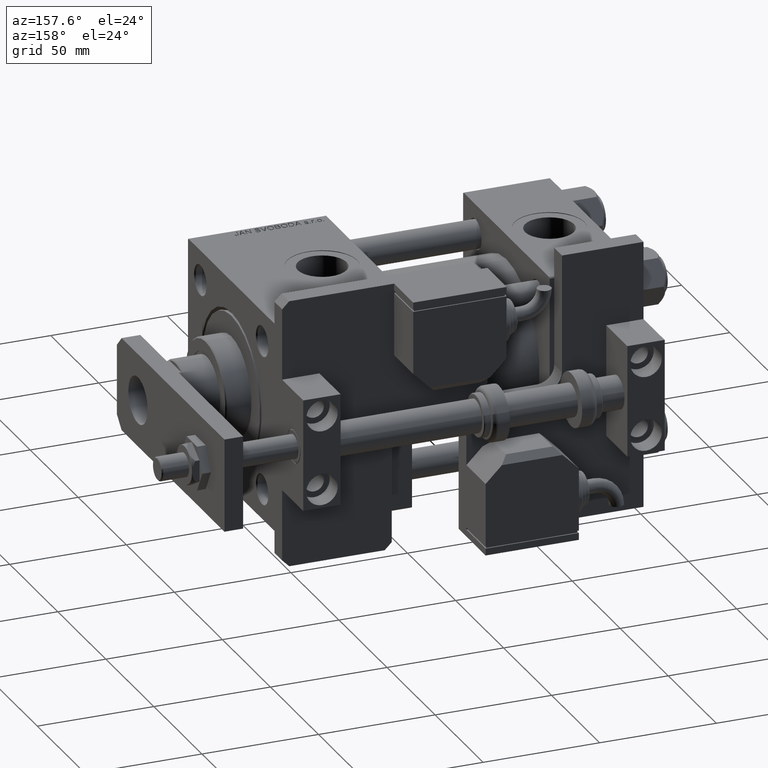
[diagram: clean part render]
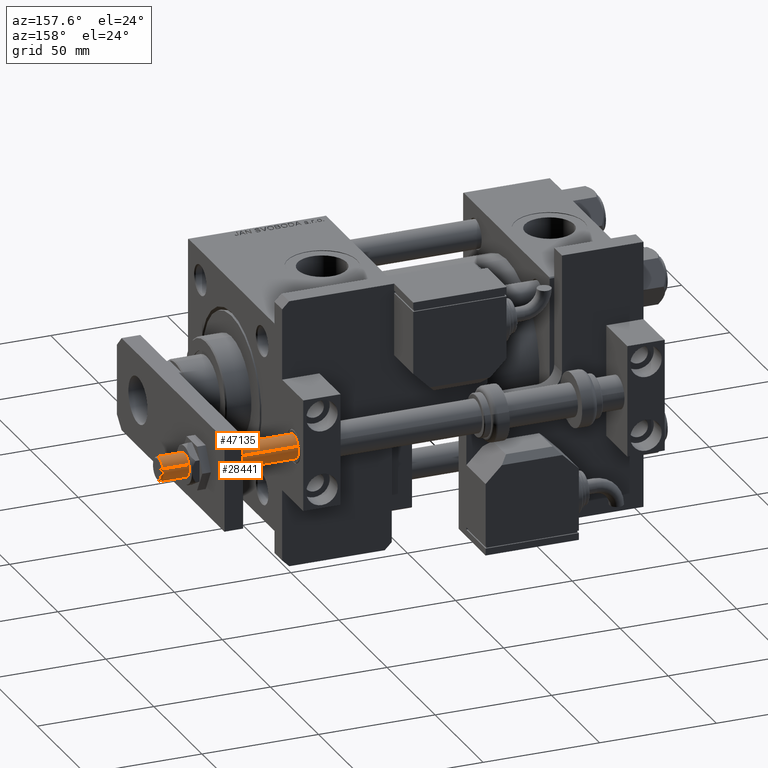
[diagram: same view with one multi-face feature highlighted, each face labeled with its STEP entity id]
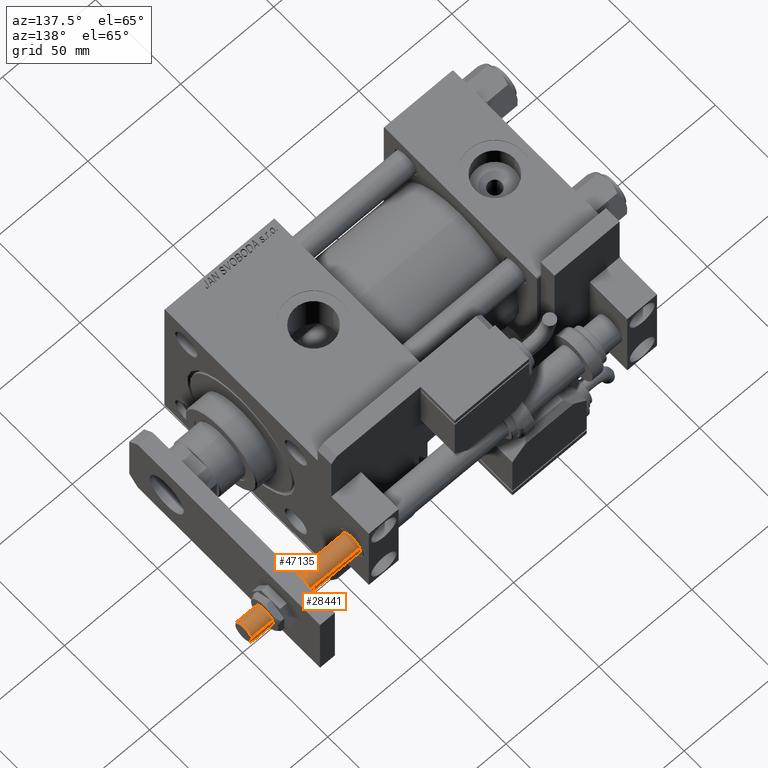
[diagram: same view with one multi-face feature highlighted, each face labeled with its STEP entity id]
A machine part, auxiliary view. The highlighted faces form ONE feature: a constant-radius fillet chain: 2 tangent blend faces with common blend radius 5 mm. The faces share edges in the B-rep.
A second angle (auxiliary view) of the same feature is appended — it is thin or edge-on in the first view.
Their STEP definitions:
[1] entity #47135 (Cylinder):
#1026 = CARTESIAN_POINT ( 'NONE',  ( -5.000000000000000000, 6.123233995736766282E-16, -58.00000000000001421 ) ) ;
#1031 = DIRECTION ( 'NONE',  ( -1.000000000000000000, 0.000000000000000000, 0.000000000000000000 ) ) ;
#1261 = CYLINDRICAL_SURFACE ( 'NONE', #44522, 5.000000000000000000 ) ;
#1269 = CARTESIAN_POINT ( 'NONE',  ( 5.000000000000000000, 0.000000000000000000, -58.00000000000001421 ) ) ;
#2434 = ORIENTED_EDGE ( 'NONE', *, *, #16419, .T. ) ;
#2978 = VECTOR ( 'NONE', #10330, 1000.000000000000000 ) ;
#5786 = FACE_OUTER_BOUND ( 'NONE', #33869, .T. ) ;
#6066 = DIRECTION ( 'NONE',  ( 1.000000000000000000, 0.000000000000000000, 0.000000000000000000 ) ) ;
#7655 = CARTESIAN_POINT ( 'NONE',  ( 5.000000000000000000, 0.000000000000000000, 0.000000000000000000 ) ) ;
#8114 = DIRECTION ( 'NONE',  ( -1.000000000000000000, 0.000000000000000000, 0.000000000000000000 ) ) ;
#9671 = ORIENTED_EDGE ( 'NONE', *, *, #27518, .T. ) ;
#10330 = DIRECTION ( 'NONE',  ( -0.000000000000000000, -0.000000000000000000, 1.000000000000000000 ) ) ;
#10607 = CARTESIAN_POINT ( 'NONE',  ( 5.000000000000000000, 0.000000000000000000, -58.50000000000000000 ) ) ;
#15119 = DIRECTION ( 'NONE',  ( -0.000000000000000000, -0.000000000000000000, 1.000000000000000000 ) ) ;
#16419 = EDGE_CURVE ( 'NONE', #36208, #50015, #26193, .T. ) ;
#18669 = VERTEX_POINT ( 'NONE', #7655 ) ;
#18816 = LINE ( 'NONE', #10607, #2978 ) ;
#19376 = CARTESIAN_POINT ( 'NONE',  ( 0.000000000000000000, 0.000000000000000000, -58.50000000000000000 ) ) ;
#20245 = EDGE_CURVE ( 'NONE', #18669, #53543, #44234, .T. ) ;
#21524 = ORIENTED_EDGE ( 'NONE', *, *, #36290, .F. ) ;
#21674 = AXIS2_PLACEMENT_3D ( 'NONE', #29600, #46829, #8114 ) ;
#25826 = VECTOR ( 'NONE', #49925, 1000.000000000000000 ) ;
#26193 = CIRCLE ( 'NONE', #21674, 5.000000000000000000 ) ;
#26515 = CARTESIAN_POINT ( 'NONE',  ( 0.000000000000000000, 0.000000000000000000, 0.000000000000000000 ) ) ;
#27518 = EDGE_CURVE ( 'NONE', #50015, #18669, #18816, .T. ) ;
#27981 = ORIENTED_EDGE ( 'NONE', *, *, #20245, .T. ) ;
#29600 = CARTESIAN_POINT ( 'NONE',  ( 0.000000000000000000, 0.000000000000000000, -58.00000000000001421 ) ) ;
#30394 = CARTESIAN_POINT ( 'NONE',  ( -5.000000000000000000, 6.123233995736766282E-16, 0.000000000000000000 ) ) ;
#31035 = DIRECTION ( 'NONE',  ( 0.000000000000000000, 0.000000000000000000, -1.000000000000000000 ) ) ;
#33869 = EDGE_LOOP ( 'NONE', ( #21524, #2434, #9671, #27981 ) ) ;
#36208 = VERTEX_POINT ( 'NONE', #1026 ) ;
#36290 = EDGE_CURVE ( 'NONE', #36208, #53543, #49092, .T. ) ;
#41541 = AXIS2_PLACEMENT_3D ( 'NONE', #26515, #31035, #1031 ) ;
#44234 = CIRCLE ( 'NONE', #41541, 5.000000000000000000 ) ;
#44522 = AXIS2_PLACEMENT_3D ( 'NONE', #19376, #15119, #6066 ) ;
#46829 = DIRECTION ( 'NONE',  ( 0.000000000000000000, 0.000000000000000000, 1.000000000000000000 ) ) ;
#47135 = ADVANCED_FACE ( 'NONE', ( #5786 ), #1261, .T. ) ;
#49092 = LINE ( 'NONE', #53611, #25826 ) ;
#49925 = DIRECTION ( 'NONE',  ( -0.000000000000000000, -0.000000000000000000, 1.000000000000000000 ) ) ;
#50015 = VERTEX_POINT ( 'NONE', #1269 ) ;
#53543 = VERTEX_POINT ( 'NONE', #30394 ) ;
#53611 = CARTESIAN_POINT ( 'NONE',  ( -5.000000000000000000, 6.123233995736766282E-16, -58.50000000000000000 ) ) ;
[2] entity #28441 (Cylinder):
#1026 = CARTESIAN_POINT ( 'NONE',  ( -5.000000000000000000, 6.123233995736766282E-16, -58.00000000000001421 ) ) ;
#1269 = CARTESIAN_POINT ( 'NONE',  ( 5.000000000000000000, 0.000000000000000000, -58.00000000000001421 ) ) ;
#2978 = VECTOR ( 'NONE', #10330, 1000.000000000000000 ) ;
#4079 = CARTESIAN_POINT ( 'NONE',  ( 0.000000000000000000, 0.000000000000000000, -58.00000000000001421 ) ) ;
#5949 = EDGE_CURVE ( 'NONE', #50015, #36208, #13493, .T. ) ;
#7655 = CARTESIAN_POINT ( 'NONE',  ( 5.000000000000000000, 0.000000000000000000, 0.000000000000000000 ) ) ;
#9374 = AXIS2_PLACEMENT_3D ( 'NONE', #32246, #15269, #54279 ) ;
#10330 = DIRECTION ( 'NONE',  ( -0.000000000000000000, -0.000000000000000000, 1.000000000000000000 ) ) ;
#10607 = CARTESIAN_POINT ( 'NONE',  ( 5.000000000000000000, 0.000000000000000000, -58.50000000000000000 ) ) ;
#12004 = EDGE_CURVE ( 'NONE', #53543, #18669, #18221, .T. ) ;
#13493 = CIRCLE ( 'NONE', #34260, 5.000000000000000000 ) ;
#15269 = DIRECTION ( 'NONE',  ( -0.000000000000000000, -0.000000000000000000, 1.000000000000000000 ) ) ;
#15550 = AXIS2_PLACEMENT_3D ( 'NONE', #31077, #22314, #34494 ) ;
#18221 = CIRCLE ( 'NONE', #15550, 5.000000000000000000 ) ;
#18669 = VERTEX_POINT ( 'NONE', #7655 ) ;
#18816 = LINE ( 'NONE', #10607, #2978 ) ;
#19900 = ORIENTED_EDGE ( 'NONE', *, *, #36290, .T. ) ;
#22314 = DIRECTION ( 'NONE',  ( 0.000000000000000000, 0.000000000000000000, -1.000000000000000000 ) ) ;
#25826 = VECTOR ( 'NONE', #49925, 1000.000000000000000 ) ;
#25834 = ORIENTED_EDGE ( 'NONE', *, *, #27518, .F. ) ;
#26248 = EDGE_LOOP ( 'NONE', ( #45560, #19900, #30344, #25834 ) ) ;
#27518 = EDGE_CURVE ( 'NONE', #50015, #18669, #18816, .T. ) ;
#28441 = ADVANCED_FACE ( 'NONE', ( #54559 ), #33084, .T. ) ;
#30110 = DIRECTION ( 'NONE',  ( 0.000000000000000000, 0.000000000000000000, 1.000000000000000000 ) ) ;
#30344 = ORIENTED_EDGE ( 'NONE', *, *, #12004, .T. ) ;
#30394 = CARTESIAN_POINT ( 'NONE',  ( -5.000000000000000000, 6.123233995736766282E-16, 0.000000000000000000 ) ) ;
#31077 = CARTESIAN_POINT ( 'NONE',  ( 0.000000000000000000, 0.000000000000000000, 0.000000000000000000 ) ) ;
#32246 = CARTESIAN_POINT ( 'NONE',  ( 0.000000000000000000, 0.000000000000000000, -58.50000000000000000 ) ) ;
#33084 = CYLINDRICAL_SURFACE ( 'NONE', #9374, 5.000000000000000000 ) ;
#34260 = AXIS2_PLACEMENT_3D ( 'NONE', #4079, #30110, #47345 ) ;
#34494 = DIRECTION ( 'NONE',  ( -1.000000000000000000, 0.000000000000000000, 0.000000000000000000 ) ) ;
#36208 = VERTEX_POINT ( 'NONE', #1026 ) ;
#36290 = EDGE_CURVE ( 'NONE', #36208, #53543, #49092, .T. ) ;
#45560 = ORIENTED_EDGE ( 'NONE', *, *, #5949, .T. ) ;
#47345 = DIRECTION ( 'NONE',  ( -1.000000000000000000, 0.000000000000000000, 0.000000000000000000 ) ) ;
#49092 = LINE ( 'NONE', #53611, #25826 ) ;
#49925 = DIRECTION ( 'NONE',  ( -0.000000000000000000, -0.000000000000000000, 1.000000000000000000 ) ) ;
#50015 = VERTEX_POINT ( 'NONE', #1269 ) ;
#53543 = VERTEX_POINT ( 'NONE', #30394 ) ;
#53611 = CARTESIAN_POINT ( 'NONE',  ( -5.000000000000000000, 6.123233995736766282E-16, -58.50000000000000000 ) ) ;
#54279 = DIRECTION ( 'NONE',  ( 1.000000000000000000, 0.000000000000000000, 0.000000000000000000 ) ) ;
#54559 = FACE_OUTER_BOUND ( 'NONE', #26248, .T. ) ;